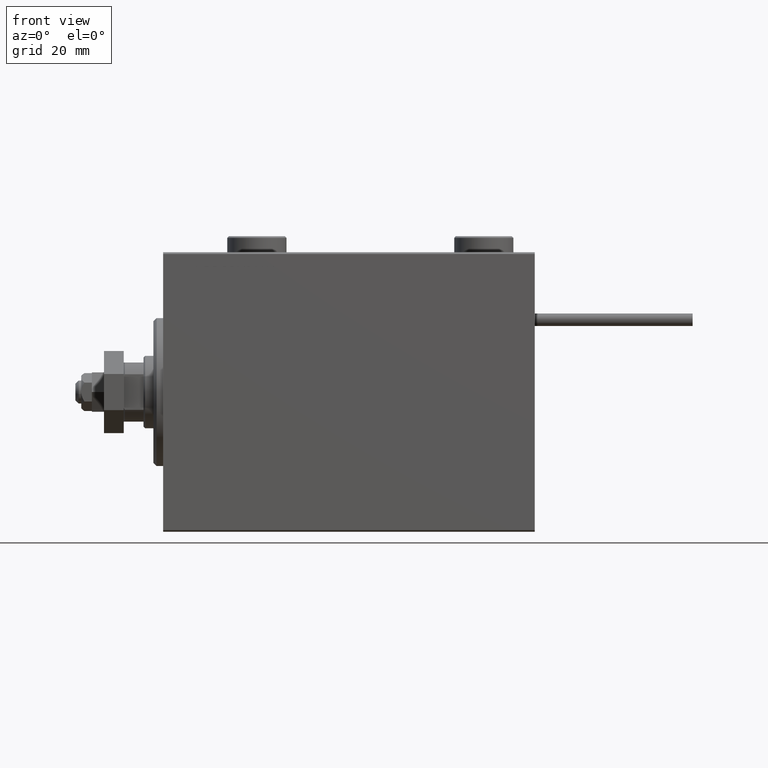
[diagram: clean part render]
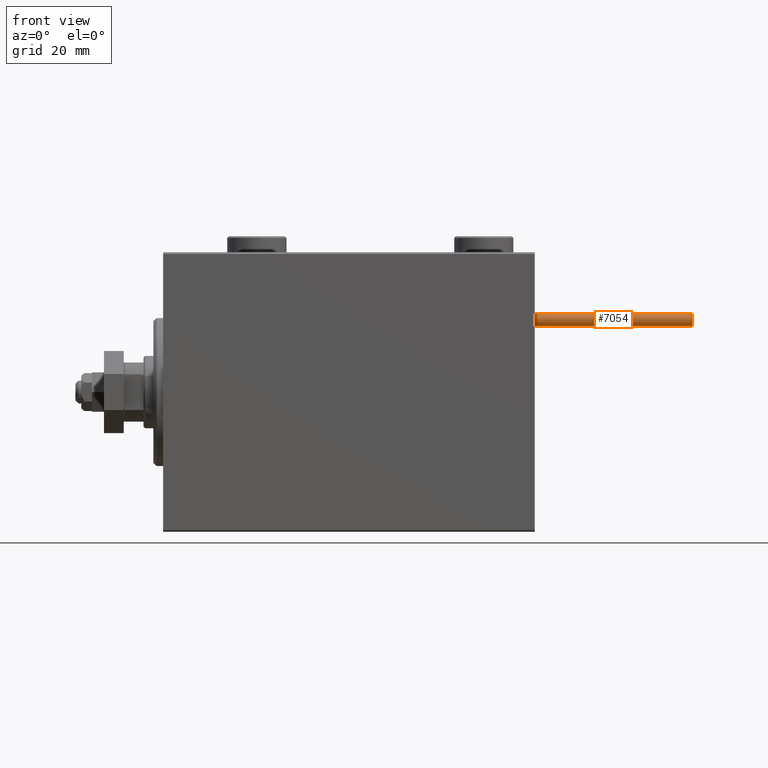
[diagram: same view with one face highlighted and labeled with its STEP entity id]
A machine part, front view. The second image highlights one B-rep face of the part: STEP entity #7054.
In plain terms, the highlighted cylindrical surface (edge-blend (fillet) strip) has radius 1.9 mm, axis along (-1, -0, -0).
Its self-contained STEP definition (entity closure, byte-faithful):
#570 = CARTESIAN_POINT ( 'NONE',  ( 0.000000000000000000, 0.000000000000000000, 48.00000000000000000 ) ) ;
#2848 = EDGE_CURVE ( 'NONE', #39859, #50673, #22038, .T. ) ;
#3480 = AXIS2_PLACEMENT_3D ( 'NONE', #570, #49219, #6130 ) ;
#3508 = CARTESIAN_POINT ( 'NONE',  ( -1.899999999999999467, 0.000000000000000000, 48.00000000000000000 ) ) ;
#6130 = DIRECTION ( 'NONE',  ( -1.000000000000000000, 0.000000000000000000, 0.000000000000000000 ) ) ;
#7054 = ADVANCED_FACE ( 'NONE', ( #20762 ), #36980, .T. ) ;
#8609 = CARTESIAN_POINT ( 'NONE',  ( 1.899999999999999467, 2.326828918379970872E-16, 48.00000000000000000 ) ) ;
#9176 = DIRECTION ( 'NONE',  ( 0.000000000000000000, 0.000000000000000000, 1.000000000000000000 ) ) ;
#10741 = CARTESIAN_POINT ( 'NONE',  ( 1.899999999999999467, 2.326828918379970872E-16, 48.00000000000000000 ) ) ;
#13378 = CARTESIAN_POINT ( 'NONE',  ( 0.000000000000000000, 0.000000000000000000, 0.000000000000000000 ) ) ;
#13794 = DIRECTION ( 'NONE',  ( -0.000000000000000000, -0.000000000000000000, -1.000000000000000000 ) ) ;
#13882 = EDGE_LOOP ( 'NONE', ( #31742, #17546, #37500, #44993 ) ) ;
#14056 = CARTESIAN_POINT ( 'NONE',  ( -1.899999999999999467, 0.000000000000000000, 48.00000000000000000 ) ) ;
#17546 = ORIENTED_EDGE ( 'NONE', *, *, #34371, .F. ) ;
#18176 = LINE ( 'NONE', #10741, #23974 ) ;
#19467 = VERTEX_POINT ( 'NONE', #3508 ) ;
#20762 = FACE_OUTER_BOUND ( 'NONE', #13882, .T. ) ;
#22038 = CIRCLE ( 'NONE', #50039, 1.899999999999999467 ) ;
#23974 = VECTOR ( 'NONE', #26948, 1000.000000000000000 ) ;
#26412 = CARTESIAN_POINT ( 'NONE',  ( 1.899999999999999467, 2.326828918379970872E-16, 0.000000000000000000 ) ) ;
#26948 = DIRECTION ( 'NONE',  ( -0.000000000000000000, -0.000000000000000000, -1.000000000000000000 ) ) ;
#29319 = DIRECTION ( 'NONE',  ( 0.000000000000000000, 0.000000000000000000, 1.000000000000000000 ) ) ;
#30261 = LINE ( 'NONE', #14056, #36910 ) ;
#31397 = CIRCLE ( 'NONE', #42427, 1.899999999999999467 ) ;
#31742 = ORIENTED_EDGE ( 'NONE', *, *, #39346, .F. ) ;
#34371 = EDGE_CURVE ( 'NONE', #19467, #41534, #31397, .T. ) ;
#36816 = DIRECTION ( 'NONE',  ( 1.000000000000000000, 0.000000000000000000, 0.000000000000000000 ) ) ;
#36910 = VECTOR ( 'NONE', #13794, 1000.000000000000000 ) ;
#36980 = CYLINDRICAL_SURFACE ( 'NONE', #3480, 1.899999999999999467 ) ;
#37500 = ORIENTED_EDGE ( 'NONE', *, *, #44632, .T. ) ;
#37742 = CARTESIAN_POINT ( 'NONE',  ( -1.899999999999999467, 0.000000000000000000, 0.000000000000000000 ) ) ;
#39346 = EDGE_CURVE ( 'NONE', #41534, #50673, #18176, .T. ) ;
#39859 = VERTEX_POINT ( 'NONE', #37742 ) ;
#41534 = VERTEX_POINT ( 'NONE', #8609 ) ;
#42427 = AXIS2_PLACEMENT_3D ( 'NONE', #45590, #9176, #36816 ) ;
#44632 = EDGE_CURVE ( 'NONE', #19467, #39859, #30261, .T. ) ;
#44993 = ORIENTED_EDGE ( 'NONE', *, *, #2848, .T. ) ;
#45550 = DIRECTION ( 'NONE',  ( 1.000000000000000000, 0.000000000000000000, 0.000000000000000000 ) ) ;
#45590 = CARTESIAN_POINT ( 'NONE',  ( 0.000000000000000000, 0.000000000000000000, 48.00000000000000000 ) ) ;
#49219 = DIRECTION ( 'NONE',  ( -0.000000000000000000, -0.000000000000000000, -1.000000000000000000 ) ) ;
#50039 = AXIS2_PLACEMENT_3D ( 'NONE', #13378, #29319, #45550 ) ;
#50673 = VERTEX_POINT ( 'NONE', #26412 ) ;